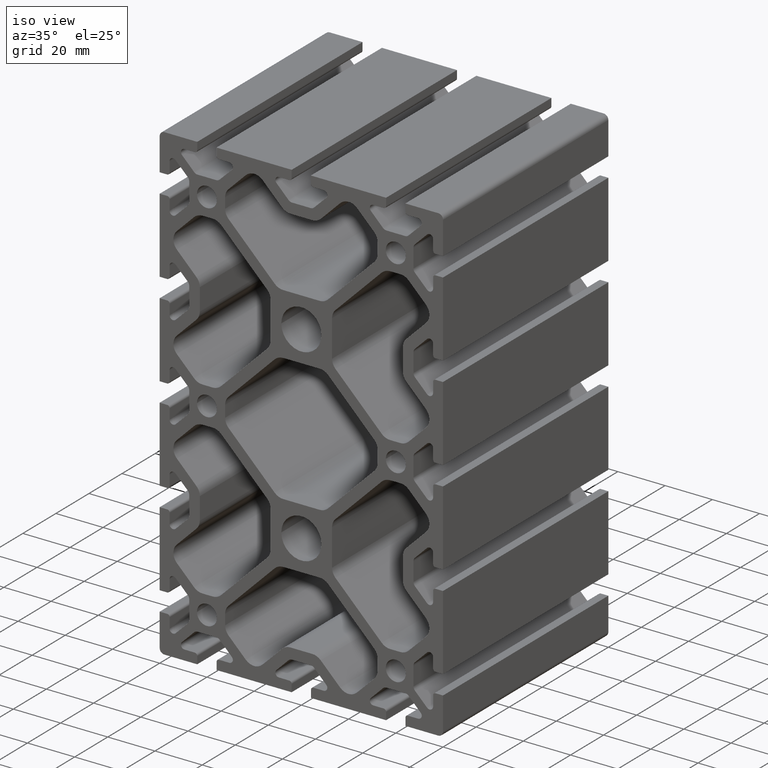
[diagram: clean part render]
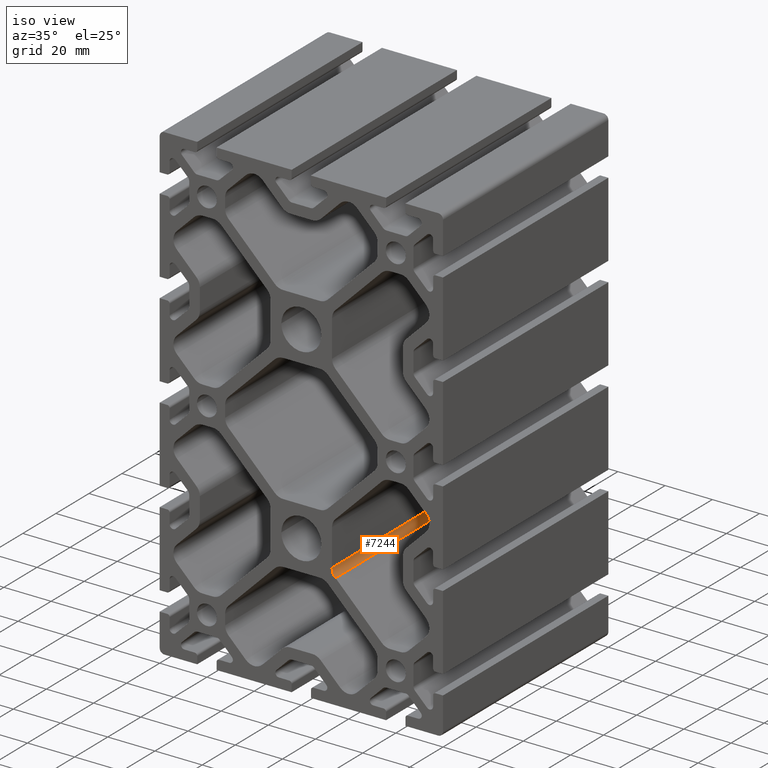
[diagram: same view with one face highlighted and labeled with its STEP entity id]
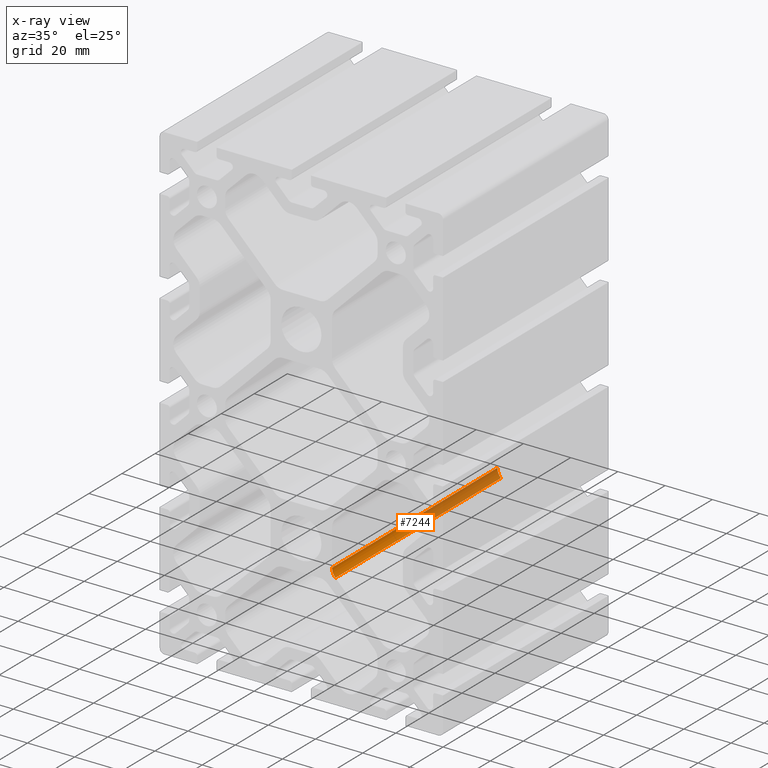
[diagram: x-ray of the same camera — body ghosted, the highlighted face saturated]
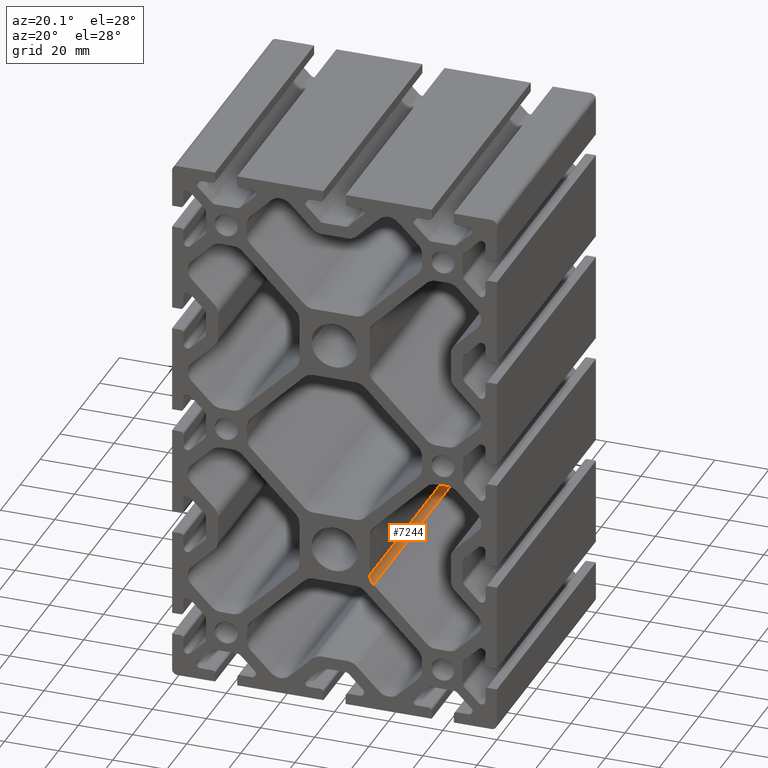
[diagram: same view with one face highlighted and labeled with its STEP entity id]
A machine part, iso view. The second image highlights one B-rep face of the part: STEP entity #7244.
The next image is the same camera in x-ray: the body ghosted, the highlighted face saturated — about 43% of this face is hidden behind the body in this view.
A second angle (auxiliary view) of the same face is appended — the face is thin or edge-on in the first view.
In plain terms, the highlighted cylindrical surface (edge-blend (fillet) strip) has radius 5 mm, axis along (0, 1, 0).
Its self-contained STEP definition (entity closure, byte-faithful):
#45=LINE('',#10677,#813);
#47=LINE('',#10683,#815);
#813=VECTOR('',#8449,100.);
#815=VECTOR('',#8455,100.);
#1810=FACE_OUTER_BOUND('',#2192,.T.);
#2192=EDGE_LOOP('',(#4877,#4878,#4879,#4880));
#2607=CIRCLE('',#7647,5.00000000000005);
#2608=CIRCLE('',#7648,5.00000000000005);
#2975=VERTEX_POINT('',#10674);
#2976=VERTEX_POINT('',#10676);
#2977=VERTEX_POINT('',#10680);
#2978=VERTEX_POINT('',#10682);
#3741=EDGE_CURVE('',#2975,#2976,#45,.T.);
#3743=EDGE_CURVE('',#2977,#2975,#2607,.T.);
#3744=EDGE_CURVE('',#2977,#2978,#47,.T.);
#3745=EDGE_CURVE('',#2976,#2978,#2608,.T.);
#4877=ORIENTED_EDGE('',*,*,#3743,.F.);
#4878=ORIENTED_EDGE('',*,*,#3744,.T.);
#4879=ORIENTED_EDGE('',*,*,#3745,.F.);
#4880=ORIENTED_EDGE('',*,*,#3741,.F.);
#7060=CYLINDRICAL_SURFACE('',#7646,5.00000000000005);
#7244=ADVANCED_FACE('',(#1810),#7060,.F.);
#7646=AXIS2_PLACEMENT_3D('',#10679,#8451,#8452);
#7647=AXIS2_PLACEMENT_3D('',#10681,#8453,#8454);
#7648=AXIS2_PLACEMENT_3D('',#10684,#8456,#8457);
#8449=DIRECTION('',(0.,1.,0.));
#8451=DIRECTION('center_axis',(0.,1.,0.));
#8452=DIRECTION('ref_axis',(-0.707106781186548,0.,-0.707106781186547));
#8453=DIRECTION('center_axis',(0.,1.,0.));
#8454=DIRECTION('ref_axis',(-0.707106781186548,0.,-0.707106781186547));
#8455=DIRECTION('',(0.,1.,0.));
#8456=DIRECTION('center_axis',(0.,-1.,0.));
#8457=DIRECTION('ref_axis',(-0.707106781186548,0.,-0.707106781186547));
#10674=CARTESIAN_POINT('',(13.,0.,-47.7469516727953));
#10676=CARTESIAN_POINT('',(13.,100.,-47.7469516727953));
#10677=CARTESIAN_POINT('',(13.,0.,-47.7469516727953));
#10679=CARTESIAN_POINT('Origin',(18.,0.,-47.7469516727953));
#10680=CARTESIAN_POINT('',(14.4644660940672,0.,-51.282485578728));
#10681=CARTESIAN_POINT('Origin',(18.,0.,-47.7469516727953));
#10682=CARTESIAN_POINT('',(14.4644660940672,100.,-51.282485578728));
#10683=CARTESIAN_POINT('',(14.4644660940672,0.,-51.282485578728));
#10684=CARTESIAN_POINT('Origin',(18.,100.,-47.7469516727953));